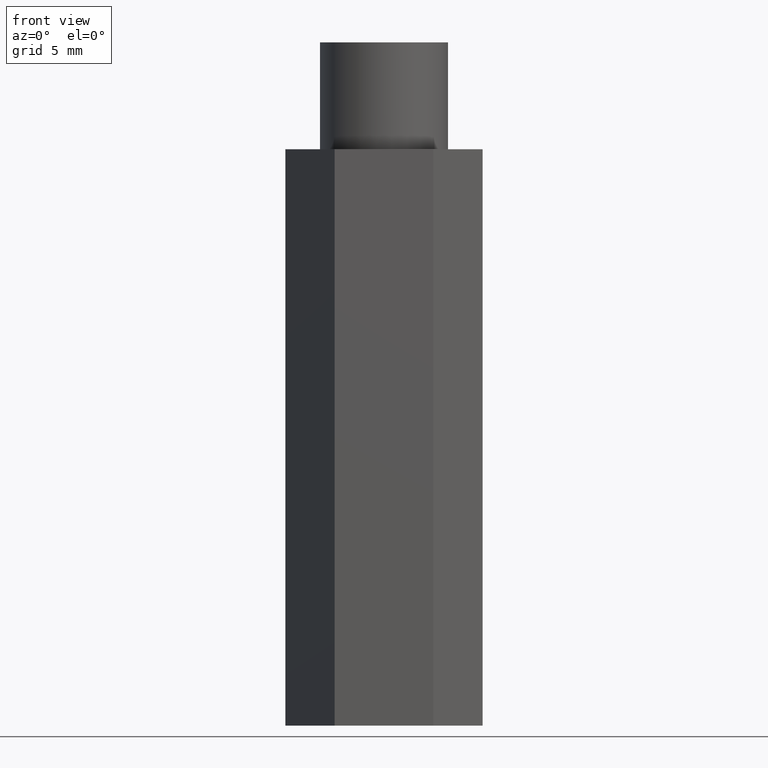
[diagram: clean part render]
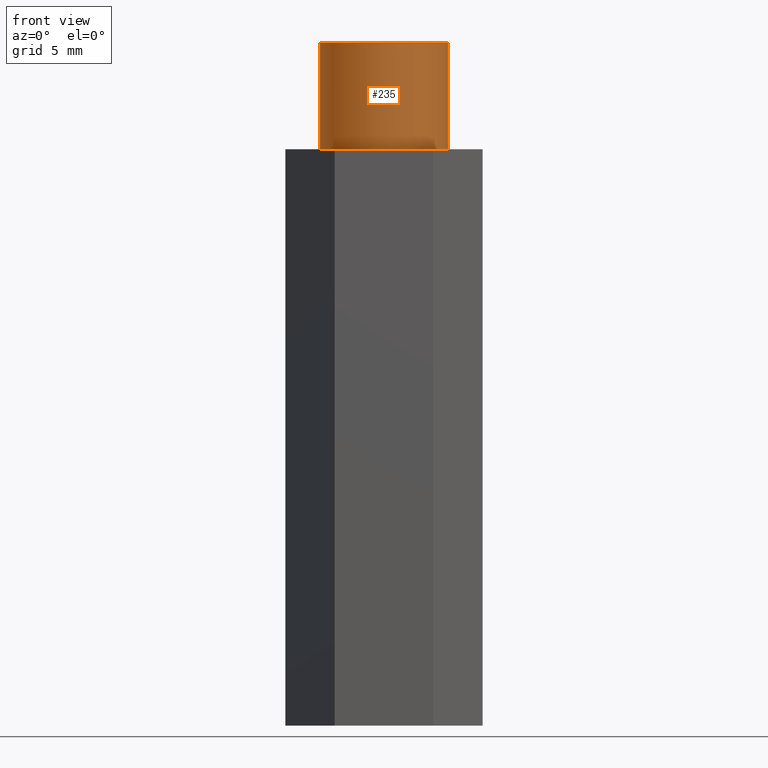
[diagram: same view with one face highlighted and labeled with its STEP entity id]
A machine part, front view. The second image highlights one B-rep face of the part: STEP entity #235.
In plain terms, the highlighted cylindrical surface (partial cylindrical patch) has radius 4.76 mm, axis along (-0, -0, -1).
Its self-contained STEP definition (entity closure, byte-faithful):
#1 = DIRECTION ( 'NONE',  ( 1.000000000000000000, 0.0000000000000000000, 0.0000000000000000000 ) ) ;
#14 = ORIENTED_EDGE ( 'NONE', *, *, #48, .F. ) ;
#25 = AXIS2_PLACEMENT_3D ( 'NONE', #160, #355, #1 ) ;
#29 = CARTESIAN_POINT ( 'NONE',  ( -0.1873999999999999800, 0.0000000000000000000, 1.687000000000000100 ) ) ;
#36 = CYLINDRICAL_SURFACE ( 'NONE', #348, 0.1873999999999999800 ) ;
#48 = EDGE_CURVE ( 'NONE', #256, #316, #107, .T. ) ;
#55 = CARTESIAN_POINT ( 'NONE',  ( -0.1873999999999999800, 0.0000000000000000000, 2.000000000000000000 ) ) ;
#87 = VERTEX_POINT ( 'NONE', #136 ) ;
#100 = VERTEX_POINT ( 'NONE', #29 ) ;
#107 = CIRCLE ( 'NONE', #25, 0.1873999999999999800 ) ;
#131 = CIRCLE ( 'NONE', #174, 0.1873999999999999800 ) ;
#136 = CARTESIAN_POINT ( 'NONE',  ( 0.1873999999999999800, 2.294988101602139800E-017, 1.687000000000000100 ) ) ;
#141 = ORIENTED_EDGE ( 'NONE', *, *, #161, .T. ) ;
#160 = CARTESIAN_POINT ( 'NONE',  ( 0.0000000000000000000, 0.0000000000000000000, 2.000000000000000000 ) ) ;
#161 = EDGE_CURVE ( 'NONE', #100, #87, #131, .T. ) ;
#167 = CARTESIAN_POINT ( 'NONE',  ( 0.0000000000000000000, 0.0000000000000000000, 1.687000000000000100 ) ) ;
#168 = DIRECTION ( 'NONE',  ( -0.0000000000000000000, -0.0000000000000000000, -1.000000000000000000 ) ) ;
#171 = EDGE_CURVE ( 'NONE', #256, #100, #214, .T. ) ;
#172 = DIRECTION ( 'NONE',  ( -1.000000000000000000, 0.0000000000000000000, 0.0000000000000000000 ) ) ;
#173 = DIRECTION ( 'NONE',  ( -0.0000000000000000000, -0.0000000000000000000, -1.000000000000000000 ) ) ;
#174 = AXIS2_PLACEMENT_3D ( 'NONE', #167, #248, #188 ) ;
#181 = EDGE_CURVE ( 'NONE', #316, #87, #267, .T. ) ;
#188 = DIRECTION ( 'NONE',  ( 1.000000000000000000, 0.0000000000000000000, 0.0000000000000000000 ) ) ;
#191 = VECTOR ( 'NONE', #168, 39.37007874015748100 ) ;
#214 = LINE ( 'NONE', #55, #191 ) ;
#217 = CARTESIAN_POINT ( 'NONE',  ( 0.1873999999999999800, 2.294988101602139800E-017, 2.000000000000000000 ) ) ;
#220 = ORIENTED_EDGE ( 'NONE', *, *, #171, .T. ) ;
#235 = ADVANCED_FACE ( 'NONE', ( #255 ), #36, .T. ) ;
#248 = DIRECTION ( 'NONE',  ( 0.0000000000000000000, 0.0000000000000000000, 1.000000000000000000 ) ) ;
#255 = FACE_OUTER_BOUND ( 'NONE', #311, .T. ) ;
#256 = VERTEX_POINT ( 'NONE', #284 ) ;
#267 = LINE ( 'NONE', #217, #289 ) ;
#270 = ORIENTED_EDGE ( 'NONE', *, *, #181, .F. ) ;
#275 = DIRECTION ( 'NONE',  ( -0.0000000000000000000, -0.0000000000000000000, -1.000000000000000000 ) ) ;
#282 = CARTESIAN_POINT ( 'NONE',  ( 0.1873999999999999800, 2.294988101602139800E-017, 2.000000000000000000 ) ) ;
#284 = CARTESIAN_POINT ( 'NONE',  ( -0.1873999999999999800, 0.0000000000000000000, 2.000000000000000000 ) ) ;
#289 = VECTOR ( 'NONE', #275, 39.37007874015748100 ) ;
#302 = CARTESIAN_POINT ( 'NONE',  ( 0.0000000000000000000, 0.0000000000000000000, 2.000000000000000000 ) ) ;
#311 = EDGE_LOOP ( 'NONE', ( #270, #14, #220, #141 ) ) ;
#316 = VERTEX_POINT ( 'NONE', #282 ) ;
#348 = AXIS2_PLACEMENT_3D ( 'NONE', #302, #173, #172 ) ;
#355 = DIRECTION ( 'NONE',  ( 0.0000000000000000000, 0.0000000000000000000, 1.000000000000000000 ) ) ;